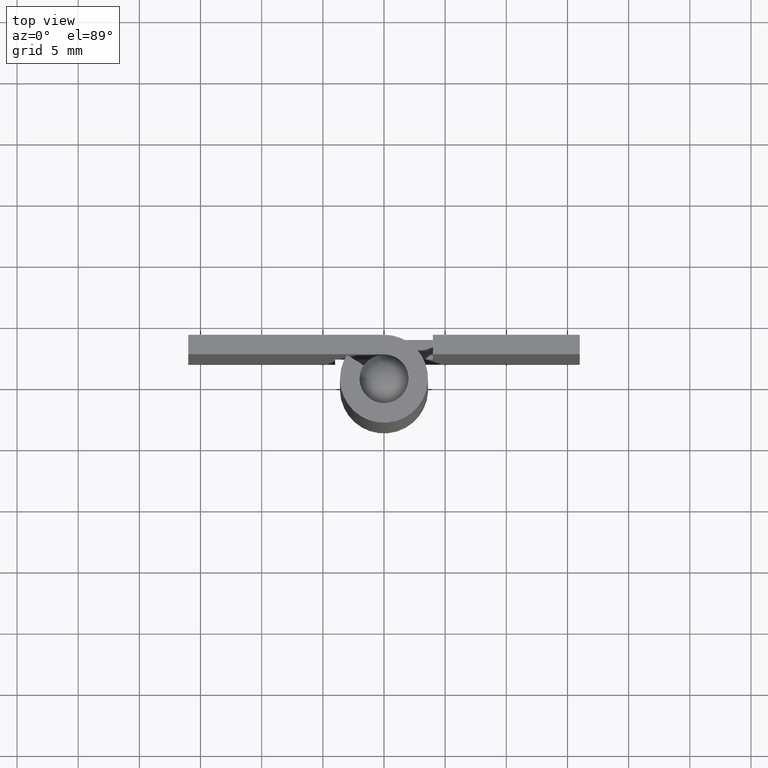
[diagram: clean part render]
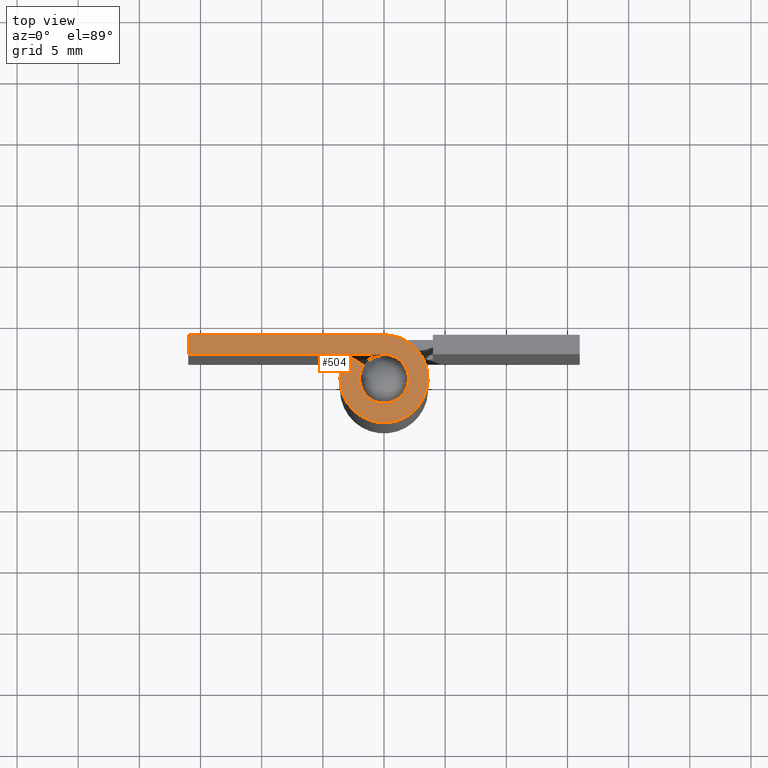
[diagram: same view with one face highlighted and labeled with its STEP entity id]
A machine part, top view. The second image highlights one B-rep face of the part: STEP entity #504.
In plain terms, the highlighted face is a freeform B-spline surface patch.
Its self-contained STEP definition (entity closure, byte-faithful):
#427=CARTESIAN_POINT('',(-16.979002579378289,-3.958064987907878,49.999991999999999));
#428=CARTESIAN_POINT('',(4.578655104405515,-3.958064987907878,49.999991999999999));
#429=CARTESIAN_POINT('',(-16.979002579378289,3.959563155499745,49.999991999999999));
#430=CARTESIAN_POINT('',(4.578655104405515,3.959563155499745,49.999991999999999));
#431=B_SPLINE_SURFACE_WITH_KNOTS('',1,1,((#427,#429),(#428,#430)),.UNSPECIFIED.,.F.,.F.,.U.,(2,2),(2,2),(0.0,21.557657683783798),(0.0,7.917628143407623),.UNSPECIFIED.);
#432=CARTESIAN_POINT('',(-1.681186750152665,1.083333333333336,49.999992000000098));
#433=VERTEX_POINT('',#432);
#434=CARTESIAN_POINT('',(-3.026136150274800,1.950000000000000,49.999992000000098));
#435=VERTEX_POINT('',#434);
#436=CARTESIAN_POINT('',(-1.681186750152665,1.083333333333336,49.999992000000098));
#437=CARTESIAN_POINT('',(-3.026136150274800,1.950000000000000,49.999992000000098));
#438=QUASI_UNIFORM_CURVE('',1,(#436,#437),.UNSPECIFIED.,.F.,.U.);
#439=EDGE_CURVE('',#433,#435,#438,.T.);
#440=ORIENTED_EDGE('',*,*,#439,.T.);
#441=CARTESIAN_POINT('',(-0.003794732665986,3.599998000000000,49.999992000000098));
#442=VERTEX_POINT('',#441);
#443=CARTESIAN_POINT('',(-0.003794732665987,3.599997999999999,49.999992000000098));
#444=CARTESIAN_POINT('',(2.794410358292481,3.602947568378868,49.999992000000084));
#445=CARTESIAN_POINT('',(3.487741550519031,0.891997128237030,49.999992000000098));
#446=CARTESIAN_POINT('',(4.181072742745579,-1.818953311904811,49.999992000000084));
#447=CARTESIAN_POINT('',(1.725034387729875,-3.159787391763790,49.999992000000098));
#448=CARTESIAN_POINT('',(-0.731003967285830,-4.500621471622769,49.999992000000084));
#449=CARTESIAN_POINT('',(-2.636417691941365,-2.451387719969765,49.999992000000098));
#450=CARTESIAN_POINT('',(-4.541831416596899,-0.402153968316764,49.999992000000084));
#451=CARTESIAN_POINT('',(-3.026136150274803,1.949999999999999,49.999992000000098));
#459=(BOUNDED_CURVE()B_SPLINE_CURVE(2,(#443,#444,#445,#446,#447,#448,#449,#450,#451),.UNSPECIFIED.,.F.,.U.)B_SPLINE_CURVE_WITH_KNOTS((3,2,2,2,3),(0.0,0.250000000000000,0.500000000000000,0.750000000000000,1.0),.UNSPECIFIED.)CURVE()GEOMETRIC_REPRESENTATION_ITEM()RATIONAL_B_SPLINE_CURVE((1.0,0.789542785308575,1.0,0.789542785308575,1.0,0.789542785308575,1.0,0.789542785308575,1.0))REPRESENTATION_ITEM(''));
#460=EDGE_CURVE('',#442,#435,#459,.T.);
#461=ORIENTED_EDGE('',*,*,#460,.F.);
#462=CARTESIAN_POINT('',(-16.0,3.599998000000000,49.999992000000098));
#463=VERTEX_POINT('',#462);
#464=CARTESIAN_POINT('',(-0.003794732665986,3.599998000000000,49.999992000000098));
#465=CARTESIAN_POINT('',(-16.0,3.599998000000000,49.999992000000098));
#466=QUASI_UNIFORM_CURVE('',1,(#464,#465),.UNSPECIFIED.,.F.,.U.);
#467=EDGE_CURVE('',#442,#463,#466,.T.);
#468=ORIENTED_EDGE('',*,*,#467,.T.);
#469=CARTESIAN_POINT('',(-16.0,2.0,49.999992000000098));
#470=VERTEX_POINT('',#469);
#471=CARTESIAN_POINT('',(-16.0,3.599998000000000,49.999992000000098));
#472=CARTESIAN_POINT('',(-16.0,2.0,49.999992000000098));
#473=QUASI_UNIFORM_CURVE('',1,(#471,#472),.UNSPECIFIED.,.F.,.U.);
#474=EDGE_CURVE('',#463,#470,#473,.T.);
#475=ORIENTED_EDGE('',*,*,#474,.T.);
#476=CARTESIAN_POINT('',(0.0,2.0,49.999992000000098));
#477=VERTEX_POINT('',#476);
#478=CARTESIAN_POINT('',(-16.0,2.0,49.999992000000098));
#479=CARTESIAN_POINT('',(0.0,2.0,49.999992000000098));
#480=QUASI_UNIFORM_CURVE('',1,(#478,#479),.UNSPECIFIED.,.F.,.U.);
#481=EDGE_CURVE('',#470,#477,#480,.T.);
#482=ORIENTED_EDGE('',*,*,#481,.T.);
#483=CARTESIAN_POINT('',(0.0,2.0,49.999992000000098));
#484=CARTESIAN_POINT('',(1.554136556548023,2.000000000000000,49.999992000000091));
#485=CARTESIAN_POINT('',(1.938025359003881,0.494021971027481,49.999992000000098));
#486=CARTESIAN_POINT('',(2.321914161459740,-1.011956057945040,49.999992000000091));
#487=CARTESIAN_POINT('',(0.957427107756337,-1.755942292142124,49.999992000000098));
#488=CARTESIAN_POINT('',(-0.407059945947066,-2.499928526339207,49.999992000000091));
#489=CARTESIAN_POINT('',(-1.465035332114957,-1.361496043202042,49.999992000000098));
#490=CARTESIAN_POINT('',(-2.523010718282848,-0.223063560064878,49.999992000000091));
#491=CARTESIAN_POINT('',(-1.681186750152667,1.083333333333336,49.999992000000098));
#499=(BOUNDED_CURVE()B_SPLINE_CURVE(2,(#483,#484,#485,#486,#487,#488,#489,#490,#491),.UNSPECIFIED.,.F.,.U.)B_SPLINE_CURVE_WITH_KNOTS((3,2,2,2,3),(0.0,0.250000000000000,0.500000000000000,0.750000000000000,1.0),.UNSPECIFIED.)CURVE()GEOMETRIC_REPRESENTATION_ITEM()RATIONAL_B_SPLINE_CURVE((1.0,0.789623639943024,1.0,0.789623639943024,1.0,0.789623639943024,1.0,0.789623639943024,1.0))REPRESENTATION_ITEM(''));
#500=EDGE_CURVE('',#477,#433,#499,.T.);
#501=ORIENTED_EDGE('',*,*,#500,.T.);
#502=EDGE_LOOP('',(#440,#461,#468,#475,#482,#501));
#503=FACE_OUTER_BOUND('',#502,.T.);
#504=ADVANCED_FACE('',(#503),#431,.T.);